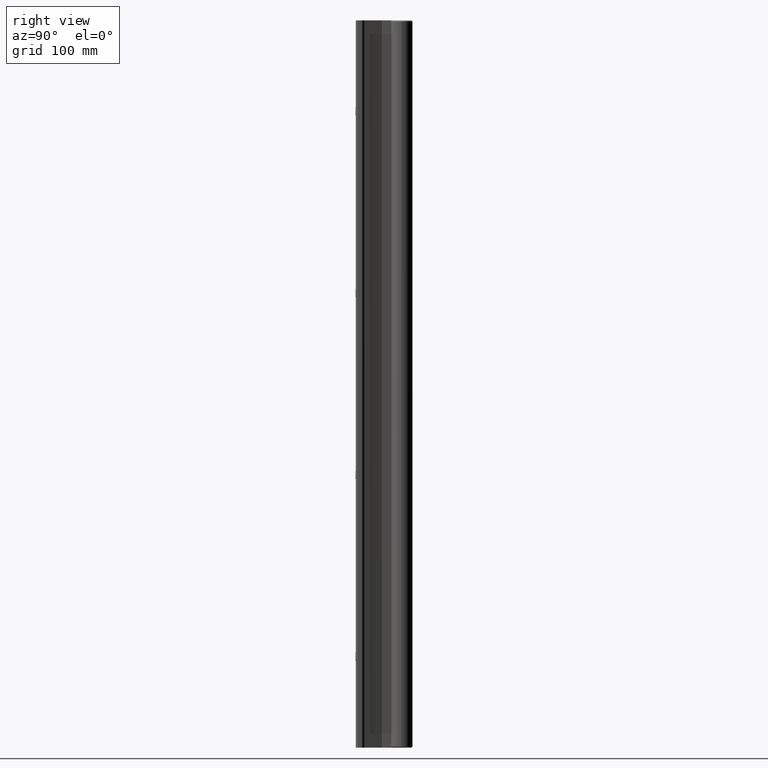
[diagram: clean part render]
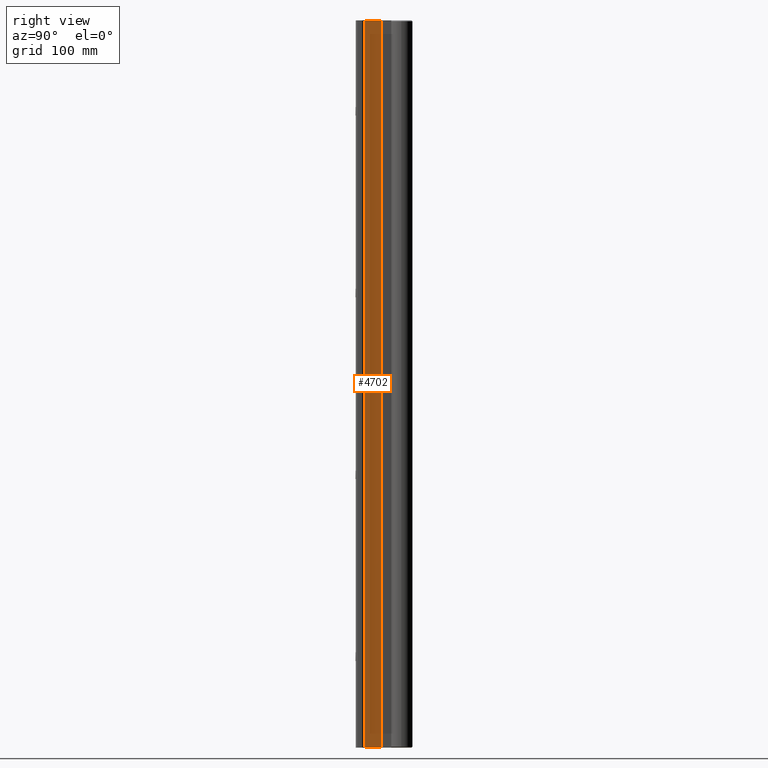
[diagram: same view with one face highlighted and labeled with its STEP entity id]
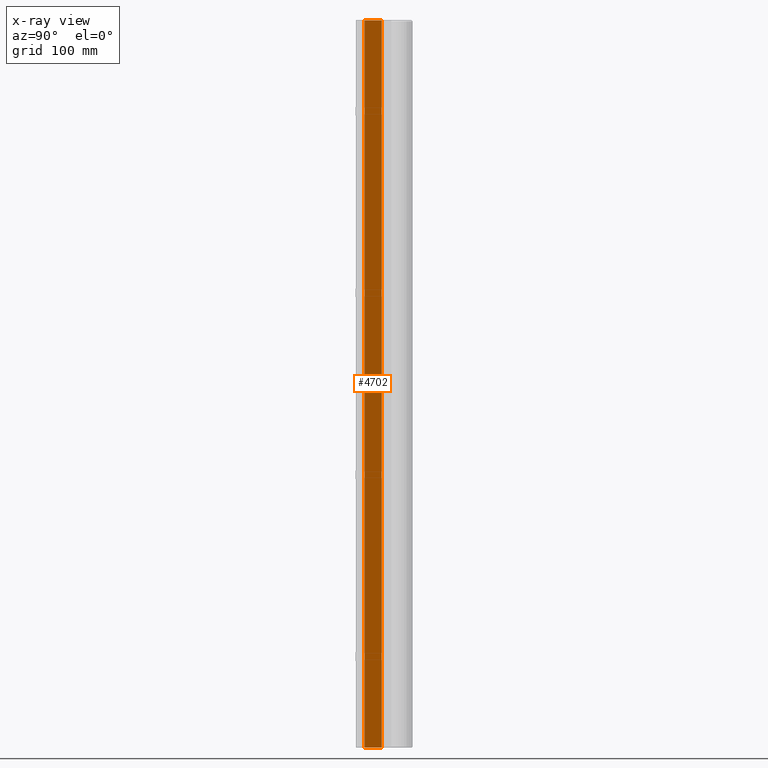
[diagram: x-ray of the same camera — body ghosted, the highlighted face saturated]
A machine part, right view. The second image highlights one B-rep face of the part: STEP entity #4702.
The next image is the same camera in x-ray: the body ghosted, the highlighted face saturated — about 0% of this face is hidden behind the body in this view.
In plain terms, the highlighted planar face has unit normal (0.9511, 0.309, 0).
Its self-contained STEP definition (entity closure, byte-faithful):
#45 = CARTESIAN_POINT ( 'NONE',  ( 0.1905589676999998316, 0.8519652309999988793, -24.00000000000000355 ) ) ;
#46 = EDGE_CURVE ( 'NONE', #2755, #2897, #1179, .T. ) ;
#491 = DIRECTION ( 'NONE',  ( -0.3090169945051225442, 0.9510565162528571426, 0.0000000000000000000 ) ) ;
#570 = VECTOR ( 'NONE', #3573, 39.37007874015748143 ) ;
#1179 = LINE ( 'NONE', #3863, #6094 ) ;
#1222 = PLANE ( 'NONE',  #2296 ) ;
#1364 = VERTEX_POINT ( 'NONE', #45 ) ;
#1421 = ORIENTED_EDGE ( 'NONE', *, *, #46, .F. ) ;
#1610 = CARTESIAN_POINT ( 'NONE',  ( 0.3721172034999985501, 0.2931864378999994303, -24.00000000000000355 ) ) ;
#1717 = VECTOR ( 'NONE', #491, 39.37007874015748854 ) ;
#1719 = CARTESIAN_POINT ( 'NONE',  ( 0.3721172034999985501, 0.2931864378999994303, -26.10463218188032641 ) ) ;
#2218 = DIRECTION ( 'NONE',  ( 0.9510565162528571426, 0.3090169945051225997, -0.0000000000000000000 ) ) ;
#2296 = AXIS2_PLACEMENT_3D ( 'NONE', #1719, #2218, #5648 ) ;
#2314 = LINE ( 'NONE', #1610, #570 ) ;
#2521 = ORIENTED_EDGE ( 'NONE', *, *, #5340, .F. ) ;
#2619 = ORIENTED_EDGE ( 'NONE', *, *, #3131, .T. ) ;
#2755 = VERTEX_POINT ( 'NONE', #5142 ) ;
#2897 = VERTEX_POINT ( 'NONE', #5760 ) ;
#3131 = EDGE_CURVE ( 'NONE', #1364, #3302, #5954, .T. ) ;
#3302 = VERTEX_POINT ( 'NONE', #5599 ) ;
#3573 = DIRECTION ( 'NONE',  ( 0.3090169945051225442, -0.9510565162528570315, 0.0000000000000000000 ) ) ;
#3824 = DIRECTION ( 'NONE',  ( 0.0000000000000000000, 0.0000000000000000000, 1.000000000000000000 ) ) ;
#3863 = CARTESIAN_POINT ( 'NONE',  ( 0.3721172034999984390, 0.2931864378999994303, -26.10463218188032641 ) ) ;
#3867 = VECTOR ( 'NONE', #5973, 39.37007874015748143 ) ;
#4100 = FACE_OUTER_BOUND ( 'NONE', #4223, .T. ) ;
#4223 = EDGE_LOOP ( 'NONE', ( #2521, #2619, #4716, #1421 ) ) ;
#4436 = CARTESIAN_POINT ( 'NONE',  ( 0.3721172034999985501, 0.2931864378999994303, 0.0000000000000000000 ) ) ;
#4510 = CARTESIAN_POINT ( 'NONE',  ( 0.1905589676999998316, 0.8519652309999988793, -26.10463218188032641 ) ) ;
#4702 = ADVANCED_FACE ( 'NONE', ( #4100 ), #1222, .T. ) ;
#4716 = ORIENTED_EDGE ( 'NONE', *, *, #5153, .F. ) ;
#5142 = CARTESIAN_POINT ( 'NONE',  ( 0.3721172034999984390, 0.2931864378999994303, -24.00000000000000355 ) ) ;
#5153 = EDGE_CURVE ( 'NONE', #2897, #3302, #5928, .T. ) ;
#5340 = EDGE_CURVE ( 'NONE', #1364, #2755, #2314, .T. ) ;
#5599 = CARTESIAN_POINT ( 'NONE',  ( 0.1905589676999998316, 0.8519652309999988793, 0.0000000000000000000 ) ) ;
#5648 = DIRECTION ( 'NONE',  ( -0.3090169945051225442, 0.9510565162528570315, 0.0000000000000000000 ) ) ;
#5760 = CARTESIAN_POINT ( 'NONE',  ( 0.3721172034999986056, 0.2931864378999994303, 0.0000000000000000000 ) ) ;
#5928 = LINE ( 'NONE', #4436, #1717 ) ;
#5954 = LINE ( 'NONE', #4510, #3867 ) ;
#5973 = DIRECTION ( 'NONE',  ( 0.0000000000000000000, 0.0000000000000000000, 1.000000000000000000 ) ) ;
#6094 = VECTOR ( 'NONE', #3824, 39.37007874015748143 ) ;